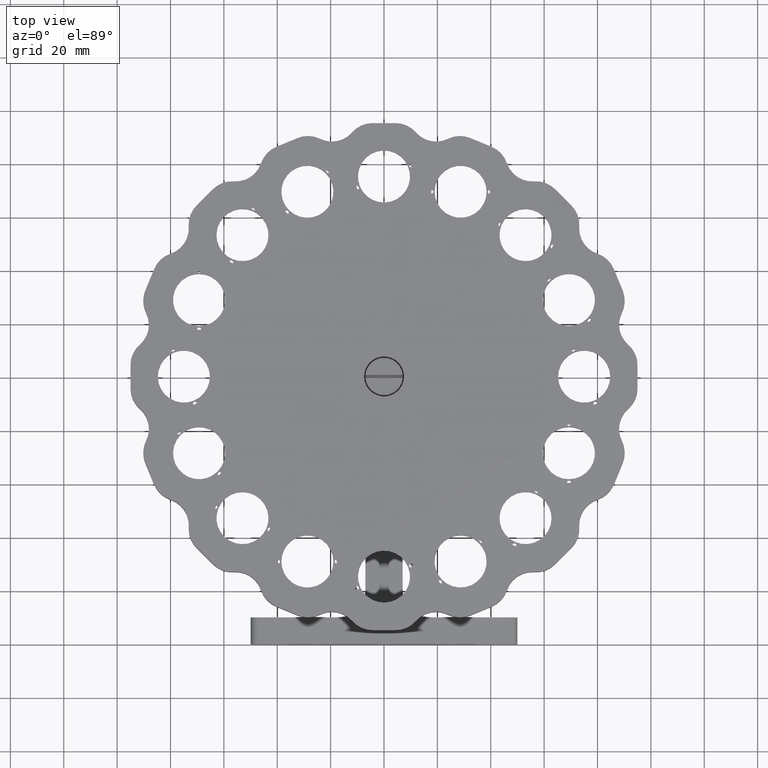
[diagram: clean part render]
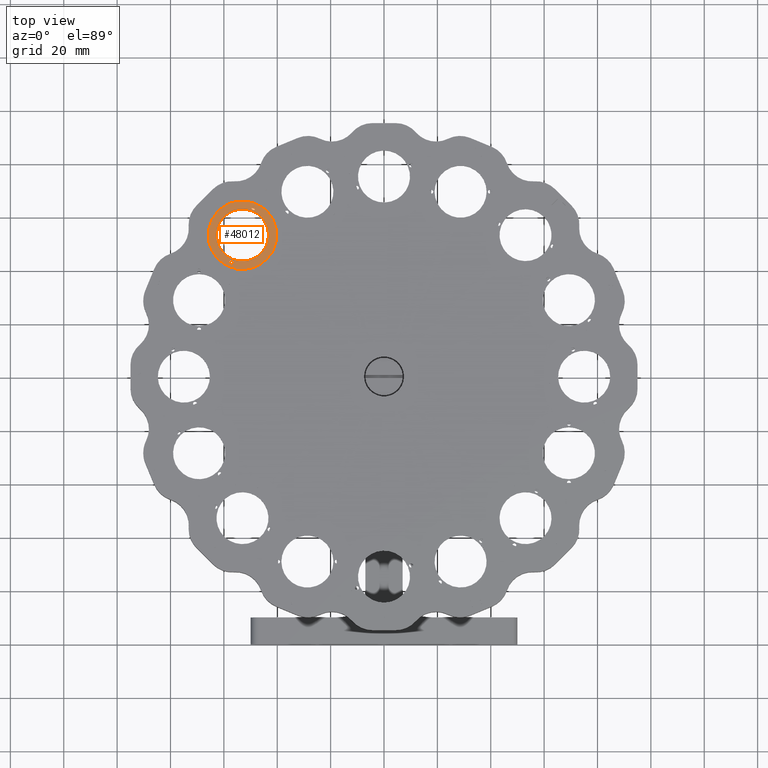
[diagram: same view with one face highlighted and labeled with its STEP entity id]
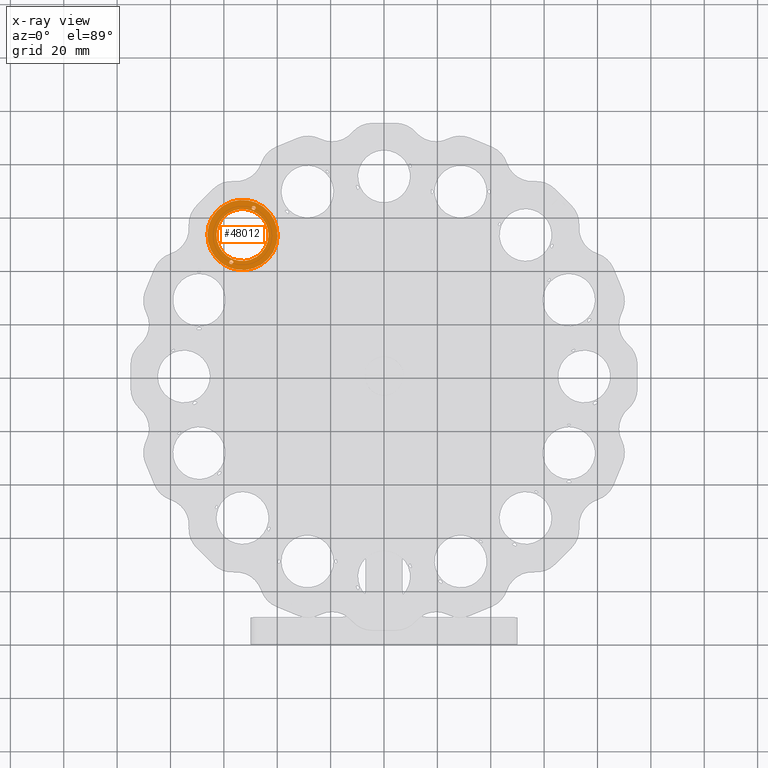
[diagram: x-ray of the same camera — body ghosted, the highlighted face saturated]
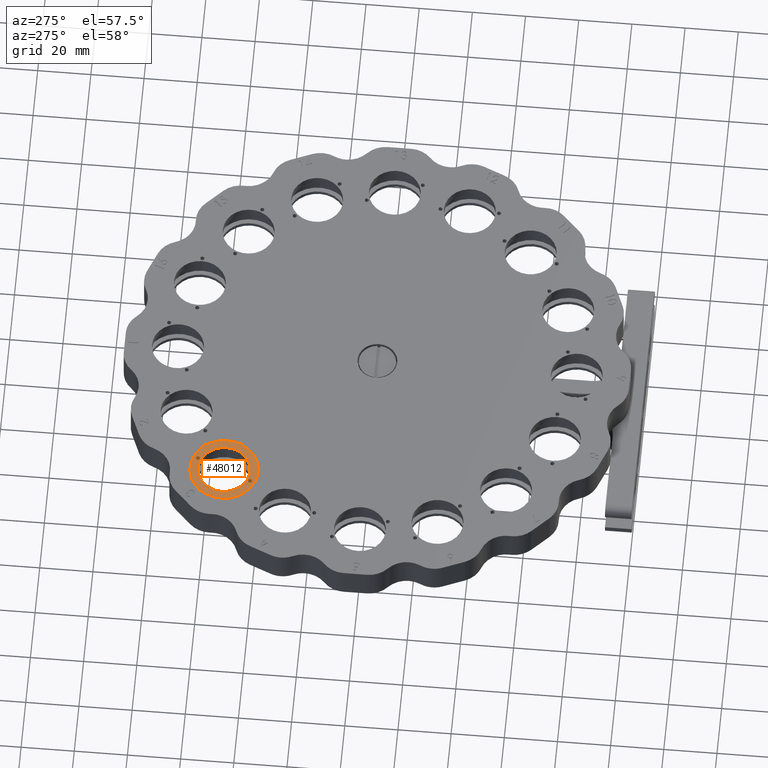
[diagram: same view with one face highlighted and labeled with its STEP entity id]
A machine part, top view. The second image highlights one B-rep face of the part: STEP entity #48012.
The next image is the same camera in x-ray: the body ghosted, the highlighted face saturated — about 0% of this face is hidden behind the body in this view.
A second angle (auxiliary view) of the same face is appended — the face is thin or edge-on in the first view.
In plain terms, the highlighted planar face has unit normal (-0, -0, 1).
Its self-contained STEP definition (entity closure, byte-faithful):
#513 = FACE_BOUND ( 'NONE', #14116, .T. ) ;
#791 = ORIENTED_EDGE ( 'NONE', *, *, #31849, .F. ) ;
#868 = CARTESIAN_POINT ( 'NONE',  ( -56.95551377072987300, 43.56324338075104700, 14.00000000000001400 ) ) ;
#1023 = DIRECTION ( 'NONE',  ( -1.196257624381719500E-018, -1.224547924171156400E-016, 1.000000000000000000 ) ) ;
#1985 = CARTESIAN_POINT ( 'NONE',  ( -48.53647825869801100, 63.88859309599949700, 14.00000000000001600 ) ) ;
#2101 = CARTESIAN_POINT ( 'NONE',  ( -53.03300858898759900, 53.03300858899174800, 14.00000000000000500 ) ) ;
#2640 = EDGE_LOOP ( 'NONE', ( #23428, #18129 ) ) ;
#3155 = CIRCLE ( 'NONE', #28396, 9.750000000000017800 ) ;
#3517 = VERTEX_POINT ( 'NONE', #42944 ) ;
#4102 = DIRECTION ( 'NONE',  ( -1.196257624381719500E-018, -1.224547924171156400E-016, 1.000000000000000000 ) ) ;
#6028 = PLANE ( 'NONE',  #21818 ) ;
#8427 = VERTEX_POINT ( 'NONE', #14879 ) ;
#8445 = DIRECTION ( 'NONE',  ( -1.196257624381719500E-018, -1.224547924171156400E-016, 1.000000000000000000 ) ) ;
#8757 = CARTESIAN_POINT ( 'NONE',  ( -58.06529572458845200, 40.88399273646829400, 14.00000000000000400 ) ) ;
#9508 = CIRCLE ( 'NONE', #16353, 9.750000000000017800 ) ;
#9786 = AXIS2_PLACEMENT_3D ( 'NONE', #33070, #41188, #25799 ) ;
#9880 = EDGE_LOOP ( 'NONE', ( #26949, #44501 ) ) ;
#10380 = VERTEX_POINT ( 'NONE', #45720 ) ;
#11603 = CIRCLE ( 'NONE', #14404, 0.7500000000000017800 ) ;
#12264 = EDGE_LOOP ( 'NONE', ( #44018, #30657 ) ) ;
#13245 = EDGE_CURVE ( 'NONE', #3517, #8427, #9508, .T. ) ;
#14116 = EDGE_LOOP ( 'NONE', ( #791, #17578 ) ) ;
#14404 = AXIS2_PLACEMENT_3D ( 'NONE', #25243, #1023, #29309 ) ;
#14879 = CARTESIAN_POINT ( 'NONE',  ( -56.76417205454717400, 44.02518314700667900, 14.00000000000000400 ) ) ;
#16353 = AXIS2_PLACEMENT_3D ( 'NONE', #32855, #8445, #49124 ) ;
#16356 = CIRCLE ( 'NONE', #46034, 13.15000000000003200 ) ;
#16428 = CIRCLE ( 'NONE', #23126, 0.7500000000000017800 ) ;
#16940 = CIRCLE ( 'NONE', #9786, 13.15000000000003200 ) ;
#17578 = ORIENTED_EDGE ( 'NONE', *, *, #13245, .F. ) ;
#17582 = EDGE_CURVE ( 'NONE', #27467, #40377, #16940, .T. ) ;
#17638 = FACE_BOUND ( 'NONE', #9880, .T. ) ;
#18075 = CARTESIAN_POINT ( 'NONE',  ( -57.52953891927749900, 42.17742408198410700, 14.00000000000001400 ) ) ;
#18129 = ORIENTED_EDGE ( 'NONE', *, *, #47904, .F. ) ;
#20164 = FACE_BOUND ( 'NONE', #2640, .T. ) ;
#21605 = DIRECTION ( 'NONE',  ( 0.3826834323650841200, 0.9238795325112891800, 1.135912643457806000E-016 ) ) ;
#21818 = AXIS2_PLACEMENT_3D ( 'NONE', #21965, #34319, #21605 ) ;
#21965 = CARTESIAN_POINT ( 'NONE',  ( -53.03300858898759900, 53.03300858899174800, 14.00000000000000500 ) ) ;
#22295 = VERTEX_POINT ( 'NONE', #868 ) ;
#22843 = CARTESIAN_POINT ( 'NONE',  ( -48.82349083297182100, 63.19568344661602300, 14.00000000000001600 ) ) ;
#23126 = AXIS2_PLACEMENT_3D ( 'NONE', #32576, #4102, #32924 ) ;
#23428 = ORIENTED_EDGE ( 'NONE', *, *, #38605, .F. ) ;
#23447 = CIRCLE ( 'NONE', #43918, 0.7500000000000017800 ) ;
#23663 = CARTESIAN_POINT ( 'NONE',  ( -53.03300858898759900, 53.03300858899174800, 14.00000000000000500 ) ) ;
#23938 = FACE_OUTER_BOUND ( 'NONE', #12264, .T. ) ;
#25243 = CARTESIAN_POINT ( 'NONE',  ( -57.24252634500368900, 42.87033373136757300, 14.00000000000001400 ) ) ;
#25500 = DIRECTION ( 'NONE',  ( 0.3826834323650820700, 0.9238795325112899600, 0.0000000000000000000 ) ) ;
#25799 = DIRECTION ( 'NONE',  ( 0.3826834323650840600, 0.9238795325112890700, 1.319181350552701800E-016 ) ) ;
#26898 = DIRECTION ( 'NONE',  ( 0.3826834323650820700, 0.9238795325112899600, 0.0000000000000000000 ) ) ;
#26949 = ORIENTED_EDGE ( 'NONE', *, *, #31348, .F. ) ;
#27411 = VERTEX_POINT ( 'NONE', #1985 ) ;
#27467 = VERTEX_POINT ( 'NONE', #42442 ) ;
#28396 = AXIS2_PLACEMENT_3D ( 'NONE', #2101, #43080, #39048 ) ;
#29309 = DIRECTION ( 'NONE',  ( -0.3826834323650820700, -0.9238795325112899600, 0.0000000000000000000 ) ) ;
#30431 = CIRCLE ( 'NONE', #33819, 0.7500000000000017800 ) ;
#30657 = ORIENTED_EDGE ( 'NONE', *, *, #17582, .T. ) ;
#31348 = EDGE_CURVE ( 'NONE', #27411, #10380, #30431, .T. ) ;
#31555 = EDGE_CURVE ( 'NONE', #10380, #27411, #23447, .T. ) ;
#31849 = EDGE_CURVE ( 'NONE', #8427, #3517, #3155, .T. ) ;
#32576 = CARTESIAN_POINT ( 'NONE',  ( -57.24252634500368900, 42.87033373136757300, 14.00000000000001400 ) ) ;
#32855 = CARTESIAN_POINT ( 'NONE',  ( -53.03300858898759900, 53.03300858899174800, 14.00000000000000500 ) ) ;
#32924 = DIRECTION ( 'NONE',  ( -0.3826834323650820700, -0.9238795325112899600, 0.0000000000000000000 ) ) ;
#33070 = CARTESIAN_POINT ( 'NONE',  ( -53.03300858898759900, 53.03300858899174800, 14.00000000000000500 ) ) ;
#33819 = AXIS2_PLACEMENT_3D ( 'NONE', #45642, #49740, #25500 ) ;
#33967 = EDGE_CURVE ( 'NONE', #40377, #27467, #16356, .T. ) ;
#34319 = DIRECTION ( 'NONE',  ( -1.196257624380785200E-018, -1.224547924171133700E-016, 1.000000000000000000 ) ) ;
#38605 = EDGE_CURVE ( 'NONE', #22295, #45829, #11603, .T. ) ;
#39048 = DIRECTION ( 'NONE',  ( 0.3826834323650844000, 0.9238795325112889600, 1.779203565104414200E-016 ) ) ;
#39763 = DIRECTION ( 'NONE',  ( -1.196257624381719500E-018, -1.224547924171156400E-016, 1.000000000000000000 ) ) ;
#40377 = VERTEX_POINT ( 'NONE', #8757 ) ;
#41188 = DIRECTION ( 'NONE',  ( -1.196257624381719500E-018, -1.224547924171156400E-016, 1.000000000000000000 ) ) ;
#42442 = CARTESIAN_POINT ( 'NONE',  ( -48.00072145338674500, 65.18202444151521000, 14.00000000000000700 ) ) ;
#42944 = CARTESIAN_POINT ( 'NONE',  ( -49.30184512342803100, 62.04083403097682500, 14.00000000000000700 ) ) ;
#43080 = DIRECTION ( 'NONE',  ( -1.196257624381719500E-018, -1.224547924171156400E-016, 1.000000000000000000 ) ) ;
#43918 = AXIS2_PLACEMENT_3D ( 'NONE', #22843, #51172, #26898 ) ;
#44018 = ORIENTED_EDGE ( 'NONE', *, *, #33967, .T. ) ;
#44501 = ORIENTED_EDGE ( 'NONE', *, *, #31555, .F. ) ;
#45642 = CARTESIAN_POINT ( 'NONE',  ( -48.82349083297182100, 63.19568344661602300, 14.00000000000001600 ) ) ;
#45720 = CARTESIAN_POINT ( 'NONE',  ( -49.11050340724563100, 62.50277379723255700, 14.00000000000001600 ) ) ;
#45829 = VERTEX_POINT ( 'NONE', #18075 ) ;
#46034 = AXIS2_PLACEMENT_3D ( 'NONE', #23663, #39763, #47700 ) ;
#47700 = DIRECTION ( 'NONE',  ( 0.3826834323650840600, 0.9238795325112890700, 1.319181350552701800E-016 ) ) ;
#47904 = EDGE_CURVE ( 'NONE', #45829, #22295, #16428, .T. ) ;
#48012 = ADVANCED_FACE ( 'NONE', ( #20164, #17638, #23938, #513 ), #6028, .T. ) ;
#49124 = DIRECTION ( 'NONE',  ( 0.3826834323650844000, 0.9238795325112889600, 1.779203565104414200E-016 ) ) ;
#49740 = DIRECTION ( 'NONE',  ( -1.196257624381719500E-018, -1.224547924171156400E-016, 1.000000000000000000 ) ) ;
#51172 = DIRECTION ( 'NONE',  ( -1.196257624381719500E-018, -1.224547924171156400E-016, 1.000000000000000000 ) ) ;